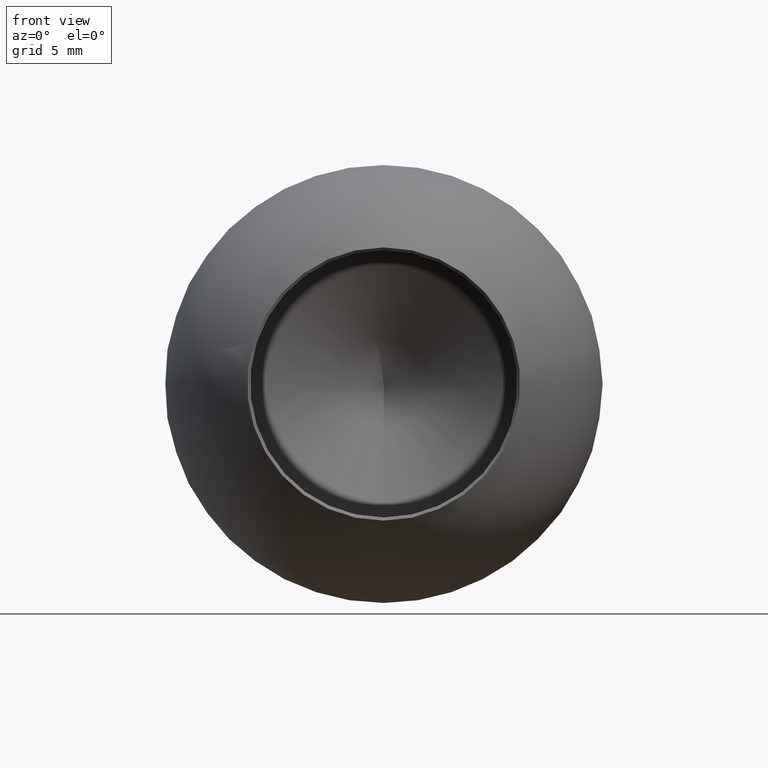
[diagram: clean part render]
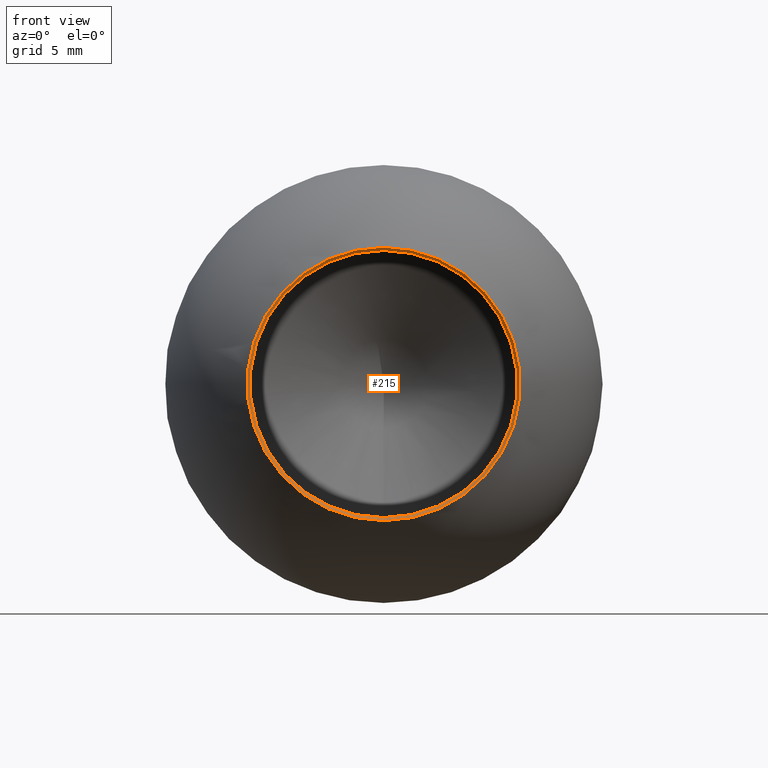
[diagram: same view with one face highlighted and labeled with its STEP entity id]
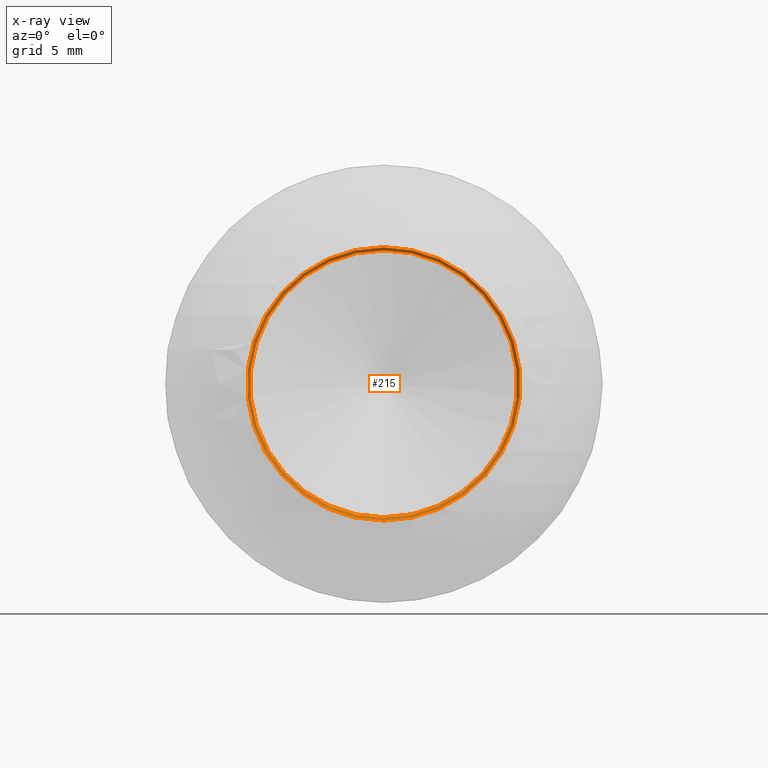
[diagram: x-ray of the same camera — body ghosted, the highlighted face saturated]
A machine part, front view. The second image highlights one B-rep face of the part: STEP entity #215.
The next image is the same camera in x-ray: the body ghosted, the highlighted face saturated — about 0% of this face is hidden behind the body in this view.
In plain terms, the highlighted conical surface has half-angle 45 deg.
Its self-contained STEP definition (entity closure, byte-faithful):
#215 = ADVANCED_FACE ( 'NONE', ( #10120, #4434 ), #5440, .F. ) ;
#537 = DIRECTION ( 'NONE',  ( -0.0000000000000000000, 1.000000000000000000, -0.0000000000000000000 ) ) ;
#888 = EDGE_LOOP ( 'NONE', ( #13483 ) ) ;
#1966 = EDGE_CURVE ( 'NONE', #5073, #5073, #9270, .T. ) ;
#4326 = CARTESIAN_POINT ( 'NONE',  ( 0.0000000000000000000, 2.325985865736992500, 0.0000000000000000000 ) ) ;
#4434 = FACE_BOUND ( 'NONE', #13042, .T. ) ;
#4953 = CARTESIAN_POINT ( 'NONE',  ( -4.314083075427450500E-032, 2.185858390518742800, 6.240127475218248100 ) ) ;
#5073 = VERTEX_POINT ( 'NONE', #4953 ) ;
#5440 = CONICAL_SURFACE ( 'NONE', #10279, 6.099999999999997000, 0.7853981633974545000 ) ;
#5508 = DIRECTION ( 'NONE',  ( 0.0000000000000000000, -1.000000000000000000, 0.0000000000000000000 ) ) ;
#7195 = EDGE_CURVE ( 'NONE', #11211, #11211, #9209, .T. ) ;
#7316 = AXIS2_PLACEMENT_3D ( 'NONE', #12010, #12057, #11022 ) ;
#7570 = DIRECTION ( 'NONE',  ( 0.0000000000000000000, 0.0000000000000000000, -1.000000000000000000 ) ) ;
#9209 = CIRCLE ( 'NONE', #7316, 6.099999999999997000 ) ;
#9270 = CIRCLE ( 'NONE', #9341, 6.240127475218248100 ) ;
#9341 = AXIS2_PLACEMENT_3D ( 'NONE', #13247, #537, #13201 ) ;
#9359 = ORIENTED_EDGE ( 'NONE', *, *, #7195, .F. ) ;
#10120 = FACE_OUTER_BOUND ( 'NONE', #888, .T. ) ;
#10279 = AXIS2_PLACEMENT_3D ( 'NONE', #4326, #5508, #7570 ) ;
#11022 = DIRECTION ( 'NONE',  ( 0.0000000000000000000, 0.0000000000000000000, -1.000000000000000000 ) ) ;
#11169 = CARTESIAN_POINT ( 'NONE',  ( 0.0000000000000000000, 2.325985865736992500, -6.099999999999997000 ) ) ;
#11211 = VERTEX_POINT ( 'NONE', #11169 ) ;
#12010 = CARTESIAN_POINT ( 'NONE',  ( 0.0000000000000000000, 2.325985865736992500, 0.0000000000000000000 ) ) ;
#12057 = DIRECTION ( 'NONE',  ( 0.0000000000000000000, -1.000000000000000000, 0.0000000000000000000 ) ) ;
#13042 = EDGE_LOOP ( 'NONE', ( #9359 ) ) ;
#13201 = DIRECTION ( 'NONE',  ( 0.0000000000000000000, 0.0000000000000000000, 1.000000000000000000 ) ) ;
#13247 = CARTESIAN_POINT ( 'NONE',  ( -4.314083075427450500E-032, 2.185858390518742800, 0.0000000000000000000 ) ) ;
#13483 = ORIENTED_EDGE ( 'NONE', *, *, #1966, .F. ) ;